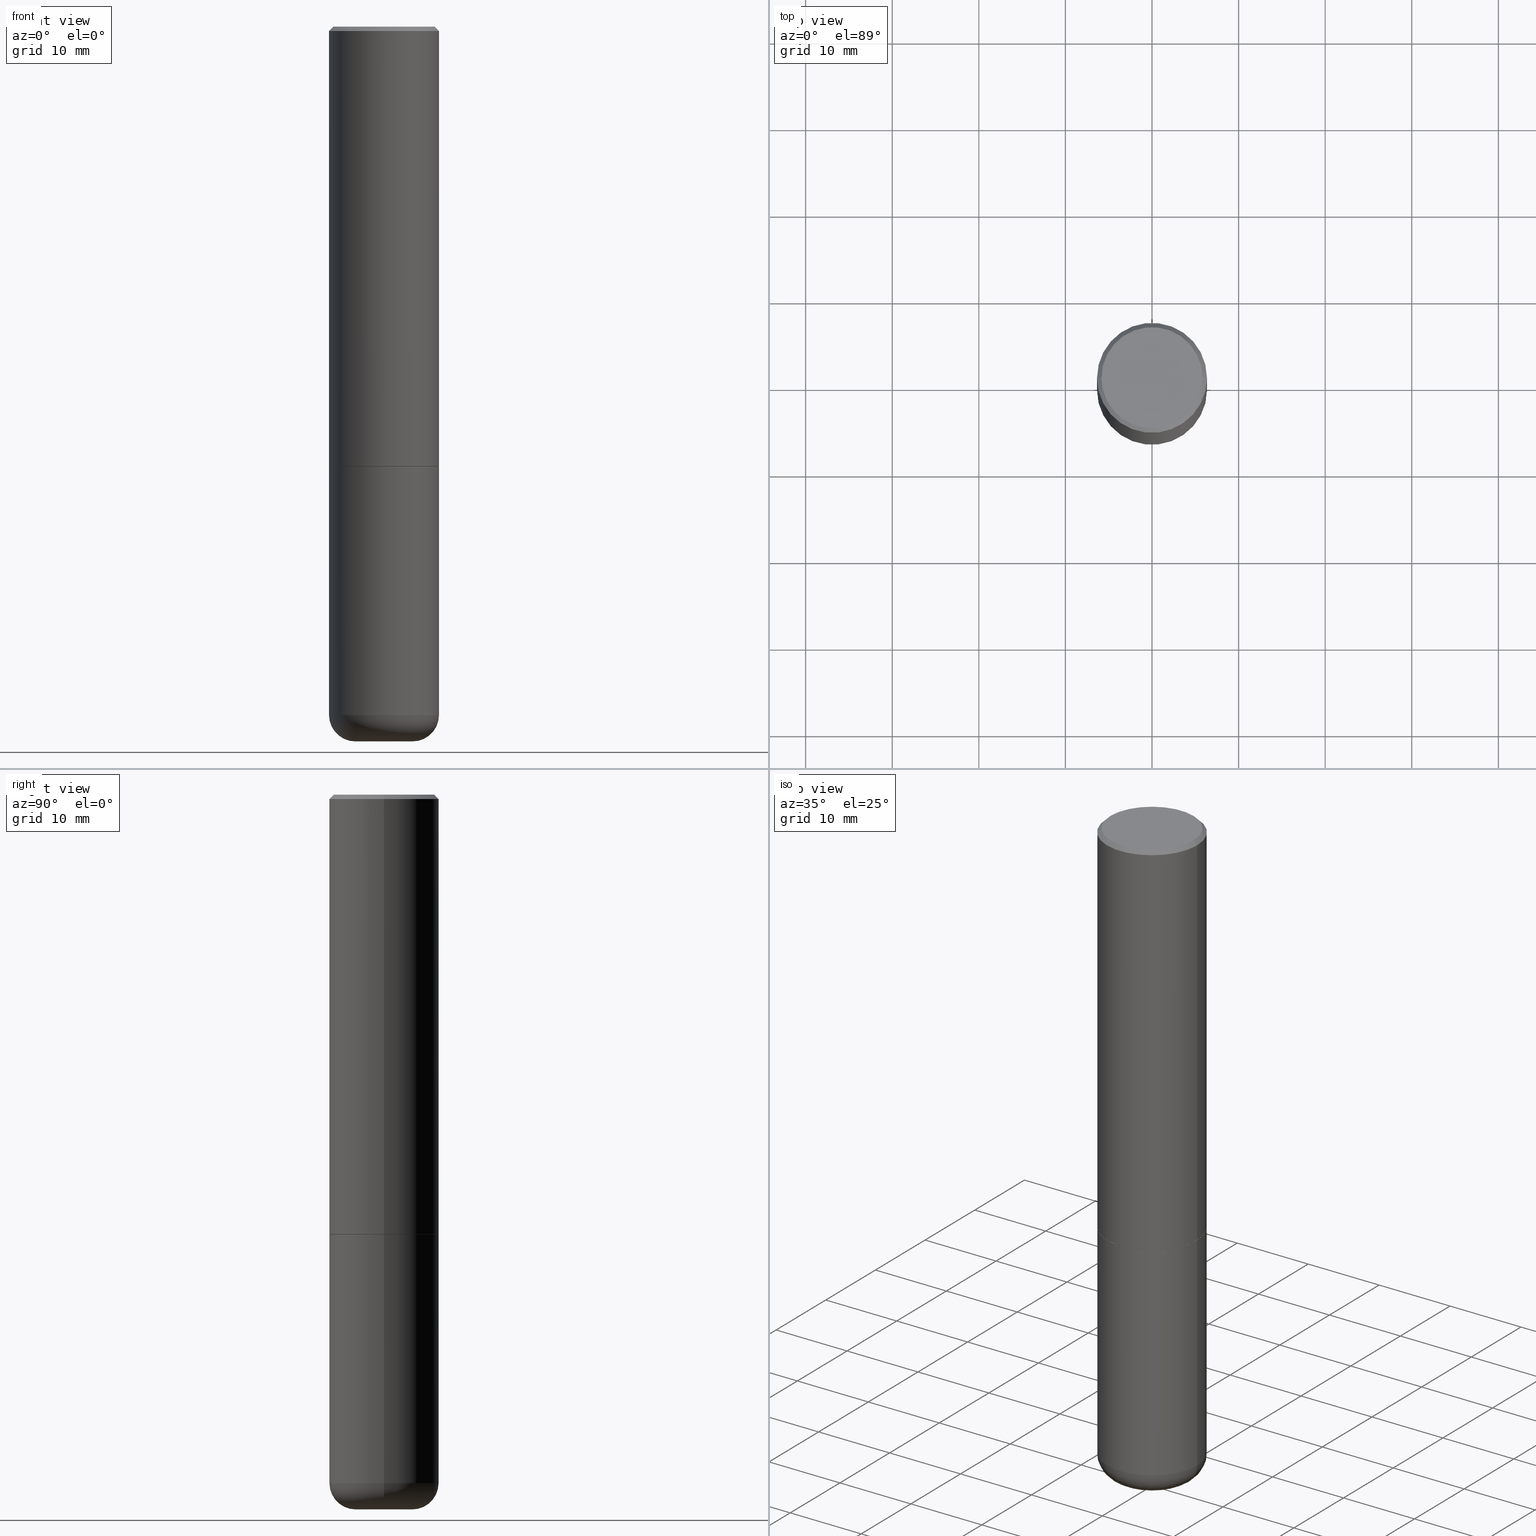
[diagram: canonical four-view strip — front | top / right | iso, engineering-drawing reading convention]
A machine part, canonical four-view strip (front | top / right | iso — engineering-drawing reading convention). The complete STEP part file that produces these views, byte-faithful:
ISO-10303-21;
HEADER;
FILE_DESCRIPTION (( 'STEP AP203' ),
    '1' );
FILE_NAME ('32830.STEP',
    '2022-11-02T20:10:47',
    ( '' ),
    ( '' ),
    'SwSTEP 2.0',
    'SolidWorks 2022',
    '' );
FILE_SCHEMA (( 'CONFIG_CONTROL_DESIGN' ));
ENDSEC;

DATA;
#1 = VERTEX_POINT ( 'NONE', #129 ) ;
#2 = ORIENTED_EDGE ( 'NONE', *, *, #184, .F. ) ;
#3 = DIRECTION ( 'NONE',  ( 2.438088387897960049E-29, -3.491481338843145188E-15, -1.000000000000000000 ) ) ;
#4 = DIRECTION ( 'NONE',  ( -2.445468806185136597E-29, 3.491481338843145583E-15, 1.000000000000000000 ) ) ;
#5 = CIRCLE ( 'NONE', #70, 0.2499999999999996669 ) ;
#6 = ORIENTED_EDGE ( 'NONE', *, *, #425, .T. ) ;
#7 = CARTESIAN_POINT ( 'NONE',  ( 4.890937612370273194E-29, -6.982962677686291165E-15, -2.000000000000000000 ) ) ;
#8 = CARTESIAN_POINT ( 'NONE',  ( 7.947773620101693940E-29, -1.134731435124022443E-14, -3.250000000000000000 ) ) ;
#9 = ORIENTED_EDGE ( 'NONE', *, *, #410, .F. ) ;
#10 = CYLINDRICAL_SURFACE ( 'NONE', #299, 0.2499999999999995559 ) ;
#11 = DIRECTION ( 'NONE',  ( 7.105427357601001859E-15, 1.000000000000000000, -3.491481338843145583E-15 ) ) ;
#12 = CARTESIAN_POINT ( 'NONE',  ( 4.888492143564087591E-29, -6.979471196347447369E-15, -1.998999999999999888 ) ) ;
#13 = FACE_OUTER_BOUND ( 'NONE', #337, .T. ) ;
#14 = DATE_AND_TIME ( #478, #261 ) ;
#15 = AXIS2_PLACEMENT_3D ( 'NONE', #41, #239, #234 ) ;
#16 = EDGE_LOOP ( 'NONE', ( #161, #382, #471, #489 ) ) ;
#17 = CONICAL_SURFACE ( 'NONE', #117, 0.1022878157401959642, 1.535889741755009696 ) ;
#18 = DIRECTION ( 'NONE',  ( 2.445468806185136597E-29, -3.491481338843145583E-15, -1.000000000000000000 ) ) ;
#19 = PERSON_AND_ORGANIZATION ( #105, #445 ) ;
#20 = EDGE_CURVE ( 'NONE', #157, #416, #49, .T. ) ;
#21 = EDGE_CURVE ( 'NONE', #199, #436, #414, .T. ) ;
#22 = CARTESIAN_POINT ( 'NONE',  ( 7.947204554791619182E-29, -1.134650187679537143E-14, -3.249767298070359800 ) ) ;
#23 = CALENDAR_DATE ( 2022, 2, 11 ) ;
#24 = CARTESIAN_POINT ( 'NONE',  ( 7.938469415450093491E-29, -1.133403041286747707E-14, -3.246195328835081995 ) ) ;
#25 = APPROVAL_ROLE ( '' ) ;
#26 = CARTESIAN_POINT ( 'NONE',  ( -0.2489999999999996660, -5.213711265643644864E-15, -2.000000000000000000 ) ) ;
#27 = APPROVAL_PERSON_ORGANIZATION ( #138, #389, #202 ) ;
#28 = ADVANCED_FACE ( 'NONE', ( #466 ), #257, .T. ) ;
#29 = DIRECTION ( 'NONE',  ( 2.445468806185136597E-29, -3.491481338843145583E-15, -1.000000000000000000 ) ) ;
#30 = EDGE_CURVE ( 'NONE', #160, #1, #87, .T. ) ;
#31 = DIRECTION ( 'NONE',  ( 2.445468806185136597E-29, -3.491481338843145583E-15, -1.000000000000000000 ) ) ;
#32 = VECTOR ( 'NONE', #179, 39.37007874015748854 ) ;
#33 = CIRCLE ( 'NONE', #219, 0.2499999999999996669 ) ;
#34 = ORIENTED_EDGE ( 'NONE', *, *, #165, .T. ) ;
#35 = DIRECTION ( 'NONE',  ( 1.000000000000000000, 0.000000000000000000, 0.000000000000000000 ) ) ;
#36 = AXIS2_PLACEMENT_3D ( 'NONE', #438, #343, #235 ) ;
#37 = AXIS2_PLACEMENT_3D ( 'NONE', #401, #292, #450 ) ;
#38 = DIRECTION ( 'NONE',  ( -2.445468806185136597E-29, 3.491481338843145583E-15, 1.000000000000000000 ) ) ;
#39 = ADVANCED_FACE ( 'NONE', ( #200 ), #135, .T. ) ;
#40 = ORIENTED_EDGE ( 'NONE', *, *, #154, .F. ) ;
#41 = CARTESIAN_POINT ( 'NONE',  ( 7.654328537274535481E-29, -1.092835254396835267E-14, -3.130004569232299527 ) ) ;
#42 = PLANE ( 'NONE',  #453 ) ;
#43 = CARTESIAN_POINT ( 'NONE',  ( -0.2499999999999996114, -1.748293572161906447E-15, -1.998999999999999888 ) ) ;
#44 = DIRECTION ( 'NONE',  ( -2.445468806185136597E-29, 3.491481338843145583E-15, 1.000000000000000000 ) ) ;
#45 = FACE_OUTER_BOUND ( 'NONE', #48, .T. ) ;
#46 = AXIS2_PLACEMENT_3D ( 'NONE', #56, #18, #232 ) ;
#47 = AXIS2_PLACEMENT_3D ( 'NONE', #174, #62, #286 ) ;
#48 = EDGE_LOOP ( 'NONE', ( #84, #242, #321, #166 ) ) ;
#49 = LINE ( 'NONE', #469, #346 ) ;
#50 = ADVANCED_FACE ( 'NONE', ( #52 ), #10, .T. ) ;
#51 = COORDINATED_UNIVERSAL_TIME_OFFSET ( 5, 0, .BEHIND. ) ;
#52 = FACE_OUTER_BOUND ( 'NONE', #305, .T. ) ;
#53 = DIRECTION ( 'NONE',  ( -2.445468806185136597E-29, 3.491481338843145583E-15, 1.000000000000000000 ) ) ;
#54 = EDGE_LOOP ( 'NONE', ( #6, #356, #153, #271 ) ) ;
#55 = DIRECTION ( 'NONE',  ( 1.000000000000000000, -6.982962677686266711E-15, 0.000000000000000000 ) ) ;
#56 = CARTESIAN_POINT ( 'NONE',  ( 4.890937612370302936E-31, -6.982962677686332285E-17, -0.02000000000000011838 ) ) ;
#57 = APPROVAL_DATE_TIME ( #86, #76 ) ;
#58 = EDGE_CURVE ( 'NONE', #456, #85, #145, .T. ) ;
#59 = AXIS2_PLACEMENT_3D ( 'NONE', #12, #189, #318 ) ;
#60 = ORIENTED_EDGE ( 'NONE', *, *, #487, .F. ) ;
#61 = VECTOR ( 'NONE', #449, 39.37007874015748854 ) ;
#62 = DIRECTION ( 'NONE',  ( -2.445468806185136597E-29, 3.491481338843145583E-15, 1.000000000000000000 ) ) ;
#63 = PERSON_AND_ORGANIZATION_ROLE ( 'creator' ) ;
#64 = CARTESIAN_POINT ( 'NONE',  ( 7.947773620101693940E-29, -1.134731435124022443E-14, -3.250000000000000000 ) ) ;
#65 = CARTESIAN_POINT ( 'NONE',  ( -0.1289528157401960140, -1.044684165174388083E-14, -3.250000000000000000 ) ) ;
#66 = COORDINATED_UNIVERSAL_TIME_OFFSET ( 5, 0, .BEHIND. ) ;
#67 = DIRECTION ( 'NONE',  ( 1.000000000000000000, -6.982962677686267499E-15, 0.000000000000000000 ) ) ;
#68 = CIRCLE ( 'NONE', #37, 0.2299999999999993161 ) ;
#69 = DIRECTION ( 'NONE',  ( 2.445468806185136597E-29, -3.491481338843145583E-15, -1.000000000000000000 ) ) ;
#70 = AXIS2_PLACEMENT_3D ( 'NONE', #97, #330, #109 ) ;
#71 = DIRECTION ( 'NONE',  ( -2.445468806185136597E-29, 3.491481338843145583E-15, 1.000000000000000000 ) ) ;
#72 = ADVANCED_FACE ( 'NONE', ( #376 ), #218, .T. ) ;
#73 = ORIENTED_EDGE ( 'NONE', *, *, #21, .F. ) ;
#74 = ORIENTED_EDGE ( 'NONE', *, *, #159, .T. ) ;
#75 = ADVANCED_FACE ( 'NONE', ( #473 ), #310, .T. ) ;
#76 = APPROVAL ( #470, 'UNSPECIFIED' ) ;
#77 = AXIS2_PLACEMENT_3D ( 'NONE', #323, #71, #67 ) ;
#78 = EDGE_LOOP ( 'NONE', ( #468, #380 ) ) ;
#79 = ORIENTED_EDGE ( 'NONE', *, *, #114, .F. ) ;
#80 = CARTESIAN_POINT ( 'NONE',  ( 4.890937612370273194E-29, -6.982962677686291165E-15, -2.000000000000000000 ) ) ;
#81 = VERTEX_POINT ( 'NONE', #492 ) ;
#82 = ORIENTED_EDGE ( 'NONE', *, *, #140, .F. ) ;
#83 = CYLINDRICAL_SURFACE ( 'NONE', #36, 0.2499999999999995559 ) ;
#84 = ORIENTED_EDGE ( 'NONE', *, *, #332, .T. ) ;
#85 = VERTEX_POINT ( 'NONE', #196 ) ;
#86 = DATE_AND_TIME ( #317, #185 ) ;
#87 = CIRCLE ( 'NONE', #208, 0.2499999999999996669 ) ;
#88 = VECTOR ( 'NONE', #284, 39.37007874015748143 ) ;
#89 = EDGE_LOOP ( 'NONE', ( #301, #121, #79 ) ) ;
#90 = DIRECTION ( 'NONE',  ( 1.000000000000000000, -6.982962677686264344E-15, 0.000000000000000000 ) ) ;
#91 = DIRECTION ( 'NONE',  ( -1.000000000000000000, 7.105427357601003436E-15, 0.000000000000000000 ) ) ;
#92 = ORIENTED_EDGE ( 'NONE', *, *, #283, .T. ) ;
#93 = DIRECTION ( 'NONE',  ( -2.445468806185136597E-29, 3.491481338843145583E-15, 1.000000000000000000 ) ) ;
#94 = EDGE_CURVE ( 'NONE', #199, #125, #100, .T. ) ;
#95 = CALENDAR_DATE ( 2022, 2, 11 ) ;
#96 = ORIENTED_EDGE ( 'NONE', *, *, #291, .T. ) ;
#97 = CARTESIAN_POINT ( 'NONE',  ( 4.890937612370273194E-29, -6.982962677686291165E-15, -2.000000000000000000 ) ) ;
#98 = APPROVAL_STATUS ( 'not_yet_approved' ) ;
#99 = ORIENTED_EDGE ( 'NONE', *, *, #355, .F. ) ;
#100 = CIRCLE ( 'NONE', #432, 0.1289528157401960140 ) ;
#101 = VECTOR ( 'NONE', #229, 39.37007874015748854 ) ;
#102 = DATE_TIME_ROLE ( 'classification_date' ) ;
#103 = FACE_OUTER_BOUND ( 'NONE', #148, .T. ) ;
#104 = CARTESIAN_POINT ( 'NONE',  ( 7.654328537274535481E-29, -1.092835254396835267E-14, -3.130004569232299527 ) ) ;
#105 = PERSON ( 'UNSPECIFIED', 'UNSPECIFIED', 'UNSPECIFIED', ('UNSPECIFIED'), ('UNSPECIFIED'), ('UNSPECIFIED') ) ;
#106 = AXIS2_PLACEMENT_3D ( 'NONE', #8, #228, #204 ) ;
#107 = CARTESIAN_POINT ( 'NONE',  ( 4.890937612370302936E-31, -6.982962677686332285E-17, -0.02000000000000011838 ) ) ;
#108 = CONICAL_SURFACE ( 'NONE', #47, 0.2489999999999996660, 0.7853981633974141952 ) ;
#109 = DIRECTION ( 'NONE',  ( 1.000000000000000000, -6.982962677686268288E-15, 0.000000000000000000 ) ) ;
#110 = CIRCLE ( 'NONE', #311, 0.2499999999999994171 ) ;
#111 = ADVANCED_FACE ( 'NONE', ( #314 ), #472, .T. ) ;
#112 = ORIENTED_EDGE ( 'NONE', *, *, #339, .T. ) ;
#113 = CC_DESIGN_APPROVAL ( #389, ( #187 ) ) ;
#114 = EDGE_CURVE ( 'NONE', #81, #259, #293, .T. ) ;
#115 = ORIENTED_EDGE ( 'NONE', *, *, #264, .F. ) ;
#116 = AXIS2_PLACEMENT_3D ( 'NONE', #173, #476, #250 ) ;
#117 = AXIS2_PLACEMENT_3D ( 'NONE', #368, #69, #134 ) ;
#118 = EDGE_LOOP ( 'NONE', ( #313, #96, #282, #73 ) ) ;
#119 = DIRECTION ( 'NONE',  ( 1.000000000000000000, -6.982962677686273810E-15, 0.000000000000000000 ) ) ;
#120 =( NAMED_UNIT ( * ) PLANE_ANGLE_UNIT ( ) SI_UNIT ( $, .RADIAN. ) );
#121 = ORIENTED_EDGE ( 'NONE', *, *, #355, .T. ) ;
#122 = DIRECTION ( 'NONE',  ( 1.000000000000000000, -6.982962677686268288E-15, 0.000000000000000000 ) ) ;
#123 = CARTESIAN_POINT ( 'NONE',  ( -0.2499999999999994449, -7.179300771427075001E-15, -3.130004569232299527 ) ) ;
#124 = ORIENTED_EDGE ( 'NONE', *, *, #455, .T. ) ;
#125 = VERTEX_POINT ( 'NONE', #329 ) ;
#126 = CARTESIAN_POINT ( 'NONE',  ( 0.2489999999999996660, -8.721720384430167884E-15, -2.000000000000000000 ) ) ;
#127 = PERSON_AND_ORGANIZATION_ROLE ( 'design_supplier' ) ;
#128 = AXIS2_PLACEMENT_3D ( 'NONE', #64, #53, #119 ) ;
#129 = CARTESIAN_POINT ( 'NONE',  ( 0.2499999999999996669, -8.728703347107855476E-15, -2.000000000000000000 ) ) ;
#130 = PLANE ( 'NONE',  #248 ) ;
#131 = EDGE_LOOP ( 'NONE', ( #82, #92, #296, #222 ) ) ;
#132 = DIRECTION ( 'NONE',  ( 1.000000000000000000, -6.982962677686266711E-15, 4.876176775795935232E-29 ) ) ;
#133 = COORDINATED_UNIVERSAL_TIME_OFFSET ( 5, 0, .BEHIND. ) ;
#134 = DIRECTION ( 'NONE',  ( -1.000000000000000000, 6.982962677686267499E-15, 0.000000000000000000 ) ) ;
#135 = TOROIDAL_SURFACE ( 'NONE', #213, 0.1300000000000002265, 0.1199999999999995098 ) ;
#136 = VECTOR ( 'NONE', #366, 39.37007874015748143 ) ;
#137 = DIRECTION ( 'NONE',  ( 0.9993908270190957621, -6.978169709227543066E-15, -0.03489949670250130226 ) ) ;
#138 = PERSON_AND_ORGANIZATION ( #105, #445 ) ;
#139 = CARTESIAN_POINT ( 'NONE',  ( 0.2299999999999993161, -1.681434332853594870E-15, 4.268512490111905999E-18 ) ) ;
#140 = EDGE_CURVE ( 'NONE', #415, #157, #68, .T. ) ;
#141 = CARTESIAN_POINT ( 'NONE',  ( 7.947204554791619182E-29, -1.134650187679537143E-14, -3.249767298070359800 ) ) ;
#142 = DIRECTION ( 'NONE',  ( 1.000000000000000000, -6.982962677686263555E-15, 0.000000000000000000 ) ) ;
#143 = AXIS2_PLACEMENT_3D ( 'NONE', #171, #255, #177 ) ;
#144 = LOCAL_TIME ( 16, 10, 47.00000000000000000, #51 ) ;
#145 = CIRCLE ( 'NONE', #59, 0.2499999999999996669 ) ;
#146 = AXIS2_PLACEMENT_3D ( 'NONE', #344, #4, #457 ) ;
#147 = MECHANICAL_CONTEXT ( 'NONE', #482, 'mechanical' ) ;
#148 = EDGE_LOOP ( 'NONE', ( #397, #278, #274, #262 ) ) ;
#149 = DIRECTION ( 'NONE',  ( -2.445468806185136597E-29, 3.491481338843145583E-15, 1.000000000000000000 ) ) ;
#150 = CARTESIAN_POINT ( 'NONE',  ( 0.2499999999999994449, -1.267409321338991461E-14, -3.130004569232299527 ) ) ;
#151 = ORIENTED_EDGE ( 'NONE', *, *, #114, .T. ) ;
#152 = DESIGN_CONTEXT ( 'detailed design', #180, 'design' ) ;
#153 = ORIENTED_EDGE ( 'NONE', *, *, #339, .F. ) ;
#154 = EDGE_CURVE ( 'NONE', #220, #416, #335, .T. ) ;
#155 = DIRECTION ( 'NONE',  ( -2.445468806185136877E-29, 3.491481338843145188E-15, 1.000000000000000000 ) ) ;
#156 = AXIS2_PLACEMENT_3D ( 'NONE', #405, #409, #132 ) ;
#157 = VERTEX_POINT ( 'NONE', #361 ) ;
#158 = DIRECTION ( 'NONE',  ( 0.9999619230641714207, -6.890705306874825328E-15, -0.008726535498369011531 ) ) ;
#159 = EDGE_CURVE ( 'NONE', #170, #436, #256, .T. ) ;
#160 = VERTEX_POINT ( 'NONE', #364 ) ;
#161 = ORIENTED_EDGE ( 'NONE', *, *, #283, .F. ) ;
#162 = FACE_OUTER_BOUND ( 'NONE', #340, .T. ) ;
#163 = APPLICATION_PROTOCOL_DEFINITION ( 'international standard', 'config_control_design', 1994, #180 ) ;
#164 = CC_DESIGN_PERSON_AND_ORGANIZATION_ASSIGNMENT ( #395, #63, ( #328 ) ) ;
#165 = EDGE_CURVE ( 'NONE', #125, #199, #479, .T. ) ;
#166 = ORIENTED_EDGE ( 'NONE', *, *, #334, .F. ) ;
#167 = CARTESIAN_POINT ( 'NONE',  ( -0.2489999999999996660, -5.208412811295422462E-15, -2.000000000000000000 ) ) ;
#168 = VECTOR ( 'NONE', #158, 39.37007874015748854 ) ;
#169 = CONICAL_SURFACE ( 'NONE', #375, 0.1022878157401959642, 1.535889741755009696 ) ;
#170 = VERTEX_POINT ( 'NONE', #123 ) ;
#171 = CARTESIAN_POINT ( 'NONE',  ( 4.890937612370302936E-31, -6.982962677686332285E-17, -0.02000000000000011838 ) ) ;
#172 = CARTESIAN_POINT ( 'NONE',  ( -0.2499999999999995559, 1.776356839400247309E-15, -1.229733772563724203E-29 ) ) ;
#173 = CARTESIAN_POINT ( 'NONE',  ( 7.654328537274535481E-29, -1.092835254396835267E-14, -3.130004569232299527 ) ) ;
#174 = CARTESIAN_POINT ( 'NONE',  ( 4.890937612370273194E-29, -6.982962677686291165E-15, -2.000000000000000000 ) ) ;
#175 = APPROVAL_ROLE ( '' ) ;
#176 = LINE ( 'NONE', #326, #198 ) ;
#177 = DIRECTION ( 'NONE',  ( -1.000000000000000000, 6.982962677686266711E-15, 0.000000000000000000 ) ) ;
#178 = DIRECTION ( 'NONE',  ( 1.000000000000000000, -6.982962677686264344E-15, 0.000000000000000000 ) ) ;
#179 = DIRECTION ( 'NONE',  ( -0.7071067811865232589, 7.493145998870265808E-15, 0.7071067811865715536 ) ) ;
#180 = APPLICATION_CONTEXT ( 'configuration controlled 3d designs of mechanical parts and assemblies' ) ;
#181 = ADVANCED_FACE ( 'NONE', ( #243 ), #260, .F. ) ;
#182 = CC_DESIGN_DATE_AND_TIME_ASSIGNMENT ( #14, #244, ( #191 ) ) ;
#183 = AXIS2_PLACEMENT_3D ( 'NONE', #351, #11, #91 ) ;
#184 = EDGE_CURVE ( 'NONE', #456, #416, #273, .T. ) ;
#185 = LOCAL_TIME ( 16, 10, 47.00000000000000000, #133 ) ;
#186 =( LENGTH_UNIT ( ) NAMED_UNIT ( * ) SI_UNIT ( $, .METRE. ) );
#187 = SECURITY_CLASSIFICATION ( '', '', #252 ) ;
#188 = DIRECTION ( 'NONE',  ( 1.000000000000000000, -6.982962677686267499E-15, 4.876225828469323455E-29 ) ) ;
#189 = DIRECTION ( 'NONE',  ( -2.445468806185136597E-29, 3.491481338843145583E-15, 1.000000000000000000 ) ) ;
#190 = ADVANCED_FACE ( 'NONE', ( #45 ), #83, .T. ) ;
#191 = PRODUCT_DEFINITION ( 'UNKNOWN', '', #328, #152 ) ;
#192 = DIRECTION ( 'NONE',  ( 1.000000000000000000, -6.982962677686264344E-15, 0.000000000000000000 ) ) ;
#193 = LINE ( 'NONE', #269, #370 ) ;
#194 = DIRECTION ( 'NONE',  ( 1.000000000000000000, -6.982962677686265922E-15, 4.876176775795935793E-29 ) ) ;
#195 = VERTEX_POINT ( 'NONE', #167 ) ;
#196 = CARTESIAN_POINT ( 'NONE',  ( 0.2499999999999996669, -8.725211865769010891E-15, -1.998999999999999888 ) ) ;
#197 = CARTESIAN_POINT ( 'NONE',  ( 0.1289528157401960140, -1.223199488543284019E-14, -3.250000000000000000 ) ) ;
#198 = VECTOR ( 'NONE', #137, 39.37007874015748143 ) ;
#199 = VERTEX_POINT ( 'NONE', #354 ) ;
#200 = FACE_OUTER_BOUND ( 'NONE', #277, .T. ) ;
#201 = DIRECTION ( 'NONE',  ( 0.7071067811865469066, -7.319954787623252890E-15, -0.7071067811865479058 ) ) ;
#202 = APPROVAL_ROLE ( '' ) ;
#203 = EDGE_LOOP ( 'NONE', ( #265, #60 ) ) ;
#204 = DIRECTION ( 'NONE',  ( -1.000000000000000000, 6.982962677686273810E-15, 0.000000000000000000 ) ) ;
#205 = ORIENTED_EDGE ( 'NONE', *, *, #30, .F. ) ;
#206 = LINE ( 'NONE', #172, #266 ) ;
#207 = PERSON_AND_ORGANIZATION ( #105, #445 ) ;
#208 = AXIS2_PLACEMENT_3D ( 'NONE', #7, #462, #122 ) ;
#209 = ORIENTED_EDGE ( 'NONE', *, *, #226, .F. ) ;
#210 = CARTESIAN_POINT ( 'NONE',  ( 4.888492143564087591E-29, -6.979471196347447369E-15, -1.998999999999999888 ) ) ;
#211 = DATE_AND_TIME ( #95, #460 ) ;
#212 = DIRECTION ( 'NONE',  ( -2.445468806185136597E-29, 3.491481338843145583E-15, 1.000000000000000000 ) ) ;
#213 = AXIS2_PLACEMENT_3D ( 'NONE', #381, #307, #388 ) ;
#214 = LOCAL_TIME ( 16, 10, 47.00000000000000000, #403 ) ;
#215 = DIRECTION ( 'NONE',  ( -1.000000000000000000, 6.982962677686267499E-15, 0.000000000000000000 ) ) ;
#216 = APPROVAL ( #237, 'UNSPECIFIED' ) ;
#217 = ADVANCED_FACE ( 'NONE', ( #13 ), #130, .F. ) ;
#218 = CONICAL_SURFACE ( 'NONE', #280, 0.2489999999999996660, 0.7853981633974141952 ) ;
#219 = AXIS2_PLACEMENT_3D ( 'NONE', #210, #441, #178 ) ;
#220 = VERTEX_POINT ( 'NONE', #423 ) ;
#221 = CARTESIAN_POINT ( 'NONE',  ( 0.000000000000000000, 0.000000000000000000, 0.000000000000000000 ) ) ;
#222 = ORIENTED_EDGE ( 'NONE', *, *, #20, .F. ) ;
#223 = CIRCLE ( 'NONE', #183, 0.1199999999999995098 ) ;
#224 = CIRCLE ( 'NONE', #294, 0.2299999999999993161 ) ;
#225 = ADVANCED_FACE ( 'NONE', ( #394 ), #399, .T. ) ;
#226 = EDGE_CURVE ( 'NONE', #170, #160, #206, .T. ) ;
#227 = DIRECTION ( 'NONE',  ( 1.000000000000000000, -6.982962677686266711E-15, 4.876176775795935232E-29 ) ) ;
#228 = DIRECTION ( 'NONE',  ( 2.445468806185136597E-29, -3.491481338843145583E-15, -1.000000000000000000 ) ) ;
#229 = DIRECTION ( 'NONE',  ( 0.7071067811865232589, -2.468850131082003836E-15, 0.7071067811865715536 ) ) ;
#230 = ORIENTED_EDGE ( 'NONE', *, *, #447, .T. ) ;
#231 = EDGE_LOOP ( 'NONE', ( #99, #421, #9 ) ) ;
#232 = DIRECTION ( 'NONE',  ( -1.000000000000000000, 6.982962677686266711E-15, 0.000000000000000000 ) ) ;
#233 = DIRECTION ( 'NONE',  ( -2.445468806185136877E-29, 3.491481338843145188E-15, 1.000000000000000000 ) ) ;
#234 = DIRECTION ( 'NONE',  ( 1.000000000000000000, -6.982962677686270655E-15, 4.883557194083114583E-29 ) ) ;
#235 = DIRECTION ( 'NONE',  ( 1.000000000000000000, -6.982962677686266711E-15, 4.876176775795935232E-29 ) ) ;
#236 = AXIS2_PLACEMENT_3D ( 'NONE', #342, #433, #90 ) ;
#237 = APPROVAL_STATUS ( 'not_yet_approved' ) ;
#238 = APPROVAL_PERSON_ORGANIZATION ( #442, #76, #25 ) ;
#239 = DIRECTION ( 'NONE',  ( -2.445468806185136597E-29, 3.491481338843145583E-15, 1.000000000000000000 ) ) ;
#240 = LINE ( 'NONE', #197, #168 ) ;
#241 = PRODUCT_DEFINITION_SHAPE ( 'NONE', 'NONE',  #191 ) ;
#242 = ORIENTED_EDGE ( 'NONE', *, *, #226, .T. ) ;
#243 = FACE_OUTER_BOUND ( 'NONE', #465, .T. ) ;
#244 = DATE_TIME_ROLE ( 'creation_date' ) ;
#245 = VERTEX_POINT ( 'NONE', #126 ) ;
#246 = ORIENTED_EDGE ( 'NONE', *, *, #21, .T. ) ;
#247 = FACE_OUTER_BOUND ( 'NONE', #54, .T. ) ;
#248 = AXIS2_PLACEMENT_3D ( 'NONE', #428, #358, #386 ) ;
#249 = ORIENTED_EDGE ( 'NONE', *, *, #159, .F. ) ;
#250 = DIRECTION ( 'NONE',  ( 1.000000000000000000, -6.982962677686263555E-15, 0.000000000000000000 ) ) ;
#251 = FACE_OUTER_BOUND ( 'NONE', #89, .T. ) ;
#252 = SECURITY_CLASSIFICATION_LEVEL ( 'unclassified' ) ;
#253 = CARTESIAN_POINT ( 'NONE',  ( 0.2499999999999995559, -1.745740669421563522E-15, 1.219044193948981706E-29 ) ) ;
#254 = CC_DESIGN_PERSON_AND_ORGANIZATION_ASSIGNMENT ( #19, #287, ( #191 ) ) ;
#255 = DIRECTION ( 'NONE',  ( 2.445468806185136597E-29, -3.491481338843145583E-15, -1.000000000000000000 ) ) ;
#256 = CIRCLE ( 'NONE', #116, 0.2499999999999994449 ) ;
#257 = TOROIDAL_SURFACE ( 'NONE', #15, 0.1300000000000002265, 0.1199999999999995098 ) ;
#258 = LINE ( 'NONE', #475, #136 ) ;
#259 = VERTEX_POINT ( 'NONE', #279 ) ;
#260 = CONICAL_SURFACE ( 'NONE', #106, 0.1289528157401960140, 1.562069680534929894 ) ;
#261 = LOCAL_TIME ( 16, 10, 47.00000000000000000, #439 ) ;
#262 = ORIENTED_EDGE ( 'NONE', *, *, #360, .F. ) ;
#263 = LINE ( 'NONE', #418, #101 ) ;
#264 = EDGE_CURVE ( 'NONE', #81, #199, #240, .T. ) ;
#265 = ORIENTED_EDGE ( 'NONE', *, *, #425, .F. ) ;
#266 = VECTOR ( 'NONE', #459, 39.37007874015748143 ) ;
#267 = CARTESIAN_POINT ( 'NONE',  ( 0.000000000000000000, 0.000000000000000000, 0.000000000000000000 ) ) ;
#268 = AXIS2_PLACEMENT_3D ( 'NONE', #80, #304, #194 ) ;
#269 = CARTESIAN_POINT ( 'NONE',  ( 0.2499999999999994171, -1.784954126219742244E-15, -0.02000000000000011838 ) ) ;
#270 = CARTESIAN_POINT ( 'NONE',  ( 0.2499999999999995282, -1.745740669421563325E-15, 1.219044193948981566E-29 ) ) ;
#271 = ORIENTED_EDGE ( 'NONE', *, *, #455, .F. ) ;
#272 = CARTESIAN_POINT ( 'NONE',  ( 4.890937612370273194E-29, -6.982962677686291165E-15, -2.000000000000000000 ) ) ;
#273 = LINE ( 'NONE', #319, #419 ) ;
#274 = ORIENTED_EDGE ( 'NONE', *, *, #165, .F. ) ;
#275 = DIRECTION ( 'NONE',  ( -0.7071067811865469066, 2.468850131082251144E-15, -0.7071067811865479058 ) ) ;
#276 = LENGTH_MEASURE_WITH_UNIT ( LENGTH_MEASURE( 0.02539999999999999897 ), #186 );
#277 = EDGE_LOOP ( 'NONE', ( #353, #34, #246, #249 ) ) ;
#278 = ORIENTED_EDGE ( 'NONE', *, *, #264, .T. ) ;
#279 = CARTESIAN_POINT ( 'NONE',  ( -0.1022878157401959642, -1.063222987709953400E-14, -3.249767298070359800 ) ) ;
#280 = AXIS2_PLACEMENT_3D ( 'NONE', #272, #93, #192 ) ;
#281 = CALENDAR_DATE ( 2022, 2, 11 ) ;
#282 = ORIENTED_EDGE ( 'NONE', *, *, #332, .F. ) ;
#283 = EDGE_CURVE ( 'NONE', #415, #220, #193, .T. ) ;
#284 = DIRECTION ( 'NONE',  ( -2.445468806185136877E-29, 3.491481338843145188E-15, 1.000000000000000000 ) ) ;
#285 = ADVANCED_FACE ( 'NONE', ( #315 ), #42, .F. ) ;
#286 = DIRECTION ( 'NONE',  ( 1.000000000000000000, -6.982962677686264344E-15, 0.000000000000000000 ) ) ;
#287 = PERSON_AND_ORGANIZATION_ROLE ( 'creator' ) ;
#288 = CIRCLE ( 'NONE', #327, 0.2499999999999994449 ) ;
#289 = AXIS2_PLACEMENT_3D ( 'NONE', #221, #372, #35 ) ;
#290 = CARTESIAN_POINT ( 'NONE',  ( -0.2499999999999994171, 1.675911042644699238E-15, -0.02000000000000011838 ) ) ;
#291 = EDGE_CURVE ( 'NONE', #125, #170, #223, .T. ) ;
#292 = DIRECTION ( 'NONE',  ( -2.445468806185136597E-29, 3.491481338843145583E-15, 1.000000000000000000 ) ) ;
#293 = CIRCLE ( 'NONE', #488, 0.1022878157401959642 ) ;
#294 = AXIS2_PLACEMENT_3D ( 'NONE', #312, #350, #188 ) ;
#295 = MANIFOLD_SOLID_BREP ( 'Body-Move/Copy2[1]', #443 ) ;
#296 = ORIENTED_EDGE ( 'NONE', *, *, #154, .T. ) ;
#297 = MANIFOLD_SOLID_BREP ( 'Body-Move/Copy2[2]', #383 ) ;
#298 = ADVANCED_FACE ( 'NONE', ( #162 ), #322, .T. ) ;
#299 = AXIS2_PLACEMENT_3D ( 'NONE', #267, #38, #227 ) ;
#300 = CIRCLE ( 'NONE', #146, 0.2489999999999996660 ) ;
#301 = ORIENTED_EDGE ( 'NONE', *, *, #430, .F. ) ;
#302 = PERSON_AND_ORGANIZATION_ROLE ( 'design_owner' ) ;
#303 = PRODUCT_RELATED_PRODUCT_CATEGORY ( 'detail', '', ( #390 ) ) ;
#304 = DIRECTION ( 'NONE',  ( -2.438088387897960049E-29, 3.491481338843145188E-15, 1.000000000000000000 ) ) ;
#305 = EDGE_LOOP ( 'NONE', ( #209, #74, #422, #205 ) ) ;
#306 = EDGE_CURVE ( 'NONE', #195, #456, #369, .T. ) ;
#307 = DIRECTION ( 'NONE',  ( -2.445468806185136597E-29, 3.491481338843145583E-15, 1.000000000000000000 ) ) ;
#308 = LINE ( 'NONE', #270, #420 ) ;
#309 = EDGE_LOOP ( 'NONE', ( #373, #384, #124, #412 ) ) ;
#310 = CYLINDRICAL_SURFACE ( 'NONE', #357, 0.2499999999999995282 ) ;
#311 = AXIS2_PLACEMENT_3D ( 'NONE', #452, #484, #444 ) ;
#312 = CARTESIAN_POINT ( 'NONE',  ( -1.043851414335219820E-46, 1.490343170380447200E-32, 4.268512490100411279E-18 ) ) ;
#313 = ORIENTED_EDGE ( 'NONE', *, *, #94, .T. ) ;
#314 = FACE_OUTER_BOUND ( 'NONE', #16, .T. ) ;
#315 = FACE_OUTER_BOUND ( 'NONE', #78, .T. ) ;
#316 = ORIENTED_EDGE ( 'NONE', *, *, #447, .F. ) ;
#317 = CALENDAR_DATE ( 2022, 2, 11 ) ;
#318 = DIRECTION ( 'NONE',  ( 1.000000000000000000, -6.982962677686264344E-15, 0.000000000000000000 ) ) ;
#319 = CARTESIAN_POINT ( 'NONE',  ( -0.2499999999999995282, 1.776356839400247112E-15, -1.229733772563724063E-29 ) ) ;
#320 = CIRCLE ( 'NONE', #77, 0.1022878157401959642 ) ;
#321 = ORIENTED_EDGE ( 'NONE', *, *, #396, .F. ) ;
#322 = CYLINDRICAL_SURFACE ( 'NONE', #156, 0.2499999999999995282 ) ;
#323 = CARTESIAN_POINT ( 'NONE',  ( 7.947204554791619182E-29, -1.134650187679537143E-14, -3.249767298070359800 ) ) ;
#324 = DATE_AND_TIME ( #281, #214 ) ;
#325 = ORIENTED_EDGE ( 'NONE', *, *, #396, .T. ) ;
#326 = CARTESIAN_POINT ( 'NONE',  ( 0.1022878157401959642, -1.204824723187740829E-14, -3.249767298070359800 ) ) ;
#327 = AXIS2_PLACEMENT_3D ( 'NONE', #104, #477, #142 ) ;
#328 = PRODUCT_DEFINITION_FORMATION_WITH_SPECIFIED_SOURCE ( 'ANY', '', #390, .NOT_KNOWN. ) ;
#329 = CARTESIAN_POINT ( 'NONE',  ( -0.1289528157401960140, -9.791522595504129181E-15, -3.250000000000000000 ) ) ;
#330 = DIRECTION ( 'NONE',  ( -2.445468806185136597E-29, 3.491481338843145583E-15, 1.000000000000000000 ) ) ;
#331 = AXIS2_PLACEMENT_3D ( 'NONE', #107, #393, #55 ) ;
#332 = EDGE_CURVE ( 'NONE', #436, #170, #288, .T. ) ;
#333 = EDGE_CURVE ( 'NONE', #416, #220, #110, .T. ) ;
#334 = EDGE_CURVE ( 'NONE', #436, #1, #448, .T. ) ;
#335 = CIRCLE ( 'NONE', #331, 0.2499999999999994171 ) ;
#336 = CIRCLE ( 'NONE', #454, 0.2489999999999996660 ) ;
#337 = EDGE_LOOP ( 'NONE', ( #325, #431 ) ) ;
#338 = APPLICATION_PROTOCOL_DEFINITION ( 'international standard', 'config_control_design', 1994, #482 ) ;
#339 = EDGE_CURVE ( 'NONE', #85, #456, #33, .T. ) ;
#340 = EDGE_LOOP ( 'NONE', ( #112, #398, #40, #316 ) ) ;
#341 = FACE_OUTER_BOUND ( 'NONE', #203, .T. ) ;
#342 = CARTESIAN_POINT ( 'NONE',  ( 0.1300000000000002265, -1.183613769206756923E-14, -3.130004569232299527 ) ) ;
#343 = DIRECTION ( 'NONE',  ( -2.445468806185136597E-29, 3.491481338843145583E-15, 1.000000000000000000 ) ) ;
#344 = CARTESIAN_POINT ( 'NONE',  ( 4.890937612370273194E-29, -6.982962677686291165E-15, -2.000000000000000000 ) ) ;
#345 = ORIENTED_EDGE ( 'NONE', *, *, #58, .T. ) ;
#346 = VECTOR ( 'NONE', #275, 39.37007874015748854 ) ;
#347 = CARTESIAN_POINT ( 'NONE',  ( 7.947773620101693940E-29, -1.134731435124022443E-14, -3.250000000000000000 ) ) ;
#348 = CONICAL_SURFACE ( 'NONE', #367, 0.1289528157401960140, 1.562069680534929894 ) ;
#349 = ADVANCED_FACE ( 'NONE', ( #407 ), #17, .F. ) ;
#350 = DIRECTION ( 'NONE',  ( -2.445468806185136597E-29, 3.491481338843145583E-15, 1.000000000000000000 ) ) ;
#351 = CARTESIAN_POINT ( 'NONE',  ( -0.1300000000000002265, -1.000464698748022161E-14, -3.130004569232299527 ) ) ;
#352 = PERSON_AND_ORGANIZATION ( #105, #445 ) ;
#353 = ORIENTED_EDGE ( 'NONE', *, *, #291, .F. ) ;
#354 = CARTESIAN_POINT ( 'NONE',  ( 0.1289528157401960140, -1.224778705073656802E-14, -3.250000000000000000 ) ) ;
#355 = EDGE_CURVE ( 'NONE', #426, #259, #258, .T. ) ;
#356 = ORIENTED_EDGE ( 'NONE', *, *, #306, .T. ) ;
#357 = AXIS2_PLACEMENT_3D ( 'NONE', #427, #44, #437 ) ;
#358 = DIRECTION ( 'NONE',  ( 2.438088387897960049E-29, -3.491481338843145188E-15, -1.000000000000000000 ) ) ;
#359 = CC_DESIGN_APPROVAL ( #76, ( #191 ) ) ;
#360 = EDGE_CURVE ( 'NONE', #259, #125, #480, .T. ) ;
#361 = CARTESIAN_POINT ( 'NONE',  ( -0.2299999999999993161, 1.640996229256267786E-15, 4.268512490089056766E-18 ) ) ;
#362 = DIRECTION ( 'NONE',  ( -1.000000000000000000, 6.982962677686273810E-15, 0.000000000000000000 ) ) ;
#363 = PERSON_AND_ORGANIZATION_ROLE ( 'classification_officer' ) ;
#364 = CARTESIAN_POINT ( 'NONE',  ( -0.2499999999999996669, -7.179300771427075001E-15, -2.000000000000000000 ) ) ;
#365 = DIRECTION ( 'NONE',  ( 1.000000000000000000, -6.982962677686264344E-15, 0.000000000000000000 ) ) ;
#366 = DIRECTION ( 'NONE',  ( -0.9993908270190957621, 6.856857904024554893E-15, -0.03489949670250130226 ) ) ;
#367 = AXIS2_PLACEMENT_3D ( 'NONE', #400, #31, #362 ) ;
#368 = CARTESIAN_POINT ( 'NONE',  ( 7.947204554791619182E-29, -1.134650187679537143E-14, -3.249767298070359800 ) ) ;
#369 = LINE ( 'NONE', #26, #32 ) ;
#370 = VECTOR ( 'NONE', #201, 39.37007874015748854 ) ;
#371 = ADVANCED_FACE ( 'NONE', ( #103 ), #348, .F. ) ;
#372 = DIRECTION ( 'NONE',  ( 0.000000000000000000, 0.000000000000000000, 1.000000000000000000 ) ) ;
#373 = ORIENTED_EDGE ( 'NONE', *, *, #306, .F. ) ;
#374 = DIMENSIONAL_EXPONENTS ( 1.000000000000000000, 0.000000000000000000, 0.000000000000000000, 0.000000000000000000, 0.000000000000000000, 0.000000000000000000, 0.000000000000000000 ) ;
#375 = AXIS2_PLACEMENT_3D ( 'NONE', #22, #29, #215 ) ;
#376 = FACE_OUTER_BOUND ( 'NONE', #309, .T. ) ;
#377 = CARTESIAN_POINT ( 'NONE',  ( 1.606081415867836334E-15, 0.2299999999999993161, -8.009064516888709120E-16 ) ) ;
#378 = PLANE ( 'NONE',  #268 ) ;
#379 = ADVANCED_FACE ( 'NONE', ( #251 ), #169, .F. ) ;
#380 = ORIENTED_EDGE ( 'NONE', *, *, #140, .T. ) ;
#381 = CARTESIAN_POINT ( 'NONE',  ( 7.654328537274535481E-29, -1.092835254396835267E-14, -3.130004569232299527 ) ) ;
#382 = ORIENTED_EDGE ( 'NONE', *, *, #467, .F. ) ;
#383 = CLOSED_SHELL ( 'NONE', ( #424, #298, #225, #111, #75, #72, #451, #285 ) ) ;
#384 = ORIENTED_EDGE ( 'NONE', *, *, #487, .T. ) ;
#385 = CC_DESIGN_SECURITY_CLASSIFICATION ( #187, ( #328 ) ) ;
#386 = DIRECTION ( 'NONE',  ( -1.000000000000000000, 6.982962677686265922E-15, -4.876176775795935793E-29 ) ) ;
#387 = PERSON_AND_ORGANIZATION ( #105, #445 ) ;
#388 = DIRECTION ( 'NONE',  ( 1.000000000000000000, -6.982962677686270655E-15, 4.883557194083114583E-29 ) ) ;
#389 = APPROVAL ( #98, 'UNSPECIFIED' ) ;
#390 = PRODUCT ( '32830', '32830', '', ( #147 ) ) ;
#391 = CC_DESIGN_PERSON_AND_ORGANIZATION_ASSIGNMENT ( #387, #127, ( #328 ) ) ;
#392 = APPROVAL_DATE_TIME ( #324, #389 ) ;
#393 = DIRECTION ( 'NONE',  ( -2.445468806185136597E-29, 3.491481338843145583E-15, 1.000000000000000000 ) ) ;
#394 = FACE_OUTER_BOUND ( 'NONE', #131, .T. ) ;
#395 = PERSON_AND_ORGANIZATION ( #105, #445 ) ;
#396 = EDGE_CURVE ( 'NONE', #1, #160, #5, .T. ) ;
#397 = ORIENTED_EDGE ( 'NONE', *, *, #410, .T. ) ;
#398 = ORIENTED_EDGE ( 'NONE', *, *, #184, .T. ) ;
#399 = CONICAL_SURFACE ( 'NONE', #46, 0.2499999999999994171, 0.7853981633974476129 ) ;
#400 = CARTESIAN_POINT ( 'NONE',  ( 7.947773620101693940E-29, -1.134731435124022443E-14, -3.250000000000000000 ) ) ;
#401 = CARTESIAN_POINT ( 'NONE',  ( -1.043851414335219820E-46, 1.490343170380447200E-32, 4.268512490100411279E-18 ) ) ;
#402 = CARTESIAN_POINT ( 'NONE',  ( 4.890937612370273194E-29, -6.982962677686291165E-15, -2.000000000000000000 ) ) ;
#403 = COORDINATED_UNIVERSAL_TIME_OFFSET ( 5, 0, .BEHIND. ) ;
#404 = DIRECTION ( 'NONE',  ( -2.445468806185136597E-29, 3.491481338843145583E-15, 1.000000000000000000 ) ) ;
#405 = CARTESIAN_POINT ( 'NONE',  ( 0.000000000000000000, 0.000000000000000000, 0.000000000000000000 ) ) ;
#406 = DIRECTION ( 'NONE',  ( 1.000000000000000000, -6.982962677686267499E-15, 0.000000000000000000 ) ) ;
#407 = FACE_OUTER_BOUND ( 'NONE', #231, .T. ) ;
#408 = APPROVAL_PERSON_ORGANIZATION ( #352, #216, #175 ) ;
#409 = DIRECTION ( 'NONE',  ( -2.445468806185136597E-29, 3.491481338843145583E-15, 1.000000000000000000 ) ) ;
#410 = EDGE_CURVE ( 'NONE', #259, #81, #320, .T. ) ;
#411 = CC_DESIGN_DATE_AND_TIME_ASSIGNMENT ( #483, #102, ( #187 ) ) ;
#412 = ORIENTED_EDGE ( 'NONE', *, *, #58, .F. ) ;
#413 = UNCERTAINTY_MEASURE_WITH_UNIT (LENGTH_MEASURE( 1.000000000000000082E-05 ), #464, 'distance_accuracy_value', 'NONE');
#414 = CIRCLE ( 'NONE', #236, 0.1199999999999995098 ) ;
#415 = VERTEX_POINT ( 'NONE', #139 ) ;
#416 = VERTEX_POINT ( 'NONE', #290 ) ;
#417 = ADVANCED_BREP_SHAPE_REPRESENTATION ( '32830', ( #295, #297, #289 ), #481 ) ;
#418 = CARTESIAN_POINT ( 'NONE',  ( 0.2489999999999996660, -8.721720384430167884E-15, -2.000000000000000000 ) ) ;
#419 = VECTOR ( 'NONE', #155, 39.37007874015748143 ) ;
#420 = VECTOR ( 'NONE', #233, 39.37007874015748143 ) ;
#421 = ORIENTED_EDGE ( 'NONE', *, *, #430, .T. ) ;
#422 = ORIENTED_EDGE ( 'NONE', *, *, #334, .T. ) ;
#423 = CARTESIAN_POINT ( 'NONE',  ( 0.2499999999999994171, -1.784954126219742244E-15, -0.02000000000000011838 ) ) ;
#424 = ADVANCED_FACE ( 'NONE', ( #247 ), #108, .T. ) ;
#425 = EDGE_CURVE ( 'NONE', #245, #195, #336, .T. ) ;
#426 = VERTEX_POINT ( 'NONE', #24 ) ;
#427 = CARTESIAN_POINT ( 'NONE',  ( 0.000000000000000000, 0.000000000000000000, 0.000000000000000000 ) ) ;
#428 = CARTESIAN_POINT ( 'NONE',  ( 1.745740669421613023E-15, 0.2499999999999927003, -2.000000000000000888 ) ) ;
#429 = PERSON_AND_ORGANIZATION ( #105, #445 ) ;
#430 = EDGE_CURVE ( 'NONE', #426, #81, #176, .T. ) ;
#431 = ORIENTED_EDGE ( 'NONE', *, *, #30, .T. ) ;
#432 = AXIS2_PLACEMENT_3D ( 'NONE', #347, #149, #458 ) ;
#433 = DIRECTION ( 'NONE',  ( -6.982962677686266711E-15, -1.000000000000000000, 3.491481338843145583E-15 ) ) ;
#434 = CC_DESIGN_APPROVAL ( #216, ( #328 ) ) ;
#435 = SHAPE_DEFINITION_REPRESENTATION ( #241, #417 ) ;
#436 = VERTEX_POINT ( 'NONE', #150 ) ;
#437 = DIRECTION ( 'NONE',  ( 1.000000000000000000, -6.982962677686266711E-15, 4.876176775795935232E-29 ) ) ;
#438 = CARTESIAN_POINT ( 'NONE',  ( 0.000000000000000000, 0.000000000000000000, 0.000000000000000000 ) ) ;
#439 = COORDINATED_UNIVERSAL_TIME_OFFSET ( 5, 0, .BEHIND. ) ;
#440 = EDGE_LOOP ( 'NONE', ( #2, #345, #230, #461 ) ) ;
#441 = DIRECTION ( 'NONE',  ( -2.445468806185136597E-29, 3.491481338843145583E-15, 1.000000000000000000 ) ) ;
#442 = PERSON_AND_ORGANIZATION ( #105, #445 ) ;
#443 = CLOSED_SHELL ( 'NONE', ( #371, #28, #190, #349, #379, #217, #50, #39, #181 ) ) ;
#444 = DIRECTION ( 'NONE',  ( 1.000000000000000000, -6.982962677686266711E-15, 0.000000000000000000 ) ) ;
#445 = ORGANIZATION ( 'UNSPECIFIED', 'UNSPECIFIED', '' ) ;
#446 = APPROVAL_DATE_TIME ( #211, #216 ) ;
#447 = EDGE_CURVE ( 'NONE', #85, #220, #308, .T. ) ;
#448 = LINE ( 'NONE', #253, #88 ) ;
#449 = DIRECTION ( 'NONE',  ( -0.9999619230641714207, 6.952228252019186602E-15, -0.008726535498369011531 ) ) ;
#450 = DIRECTION ( 'NONE',  ( 1.000000000000000000, -6.982962677686267499E-15, 4.876225828469323455E-29 ) ) ;
#451 = ADVANCED_FACE ( 'NONE', ( #341 ), #378, .F. ) ;
#452 = CARTESIAN_POINT ( 'NONE',  ( 4.890937612370302936E-31, -6.982962677686332285E-17, -0.02000000000000011838 ) ) ;
#453 = AXIS2_PLACEMENT_3D ( 'NONE', #377, #3, #463 ) ;
#454 = AXIS2_PLACEMENT_3D ( 'NONE', #402, #212, #365 ) ;
#455 = EDGE_CURVE ( 'NONE', #245, #85, #263, .T. ) ;
#456 = VERTEX_POINT ( 'NONE', #43 ) ;
#457 = DIRECTION ( 'NONE',  ( 1.000000000000000000, -6.982962677686264344E-15, 0.000000000000000000 ) ) ;
#458 = DIRECTION ( 'NONE',  ( 1.000000000000000000, -6.982962677686273810E-15, 0.000000000000000000 ) ) ;
#459 = DIRECTION ( 'NONE',  ( -2.445468806185136877E-29, 3.491481338843145188E-15, 1.000000000000000000 ) ) ;
#460 = LOCAL_TIME ( 16, 10, 47.00000000000000000, #66 ) ;
#461 = ORIENTED_EDGE ( 'NONE', *, *, #333, .F. ) ;
#462 = DIRECTION ( 'NONE',  ( -2.445468806185136597E-29, 3.491481338843145583E-15, 1.000000000000000000 ) ) ;
#463 = DIRECTION ( 'NONE',  ( -1.000000000000000000, 6.982962677686265922E-15, -4.876176775795935793E-29 ) ) ;
#464 =( CONVERSION_BASED_UNIT ( 'INCH', #276 ) LENGTH_UNIT ( ) NAMED_UNIT ( #374 ) );
#465 = EDGE_LOOP ( 'NONE', ( #115, #151, #474, #486 ) ) ;
#466 = FACE_OUTER_BOUND ( 'NONE', #118, .T. ) ;
#467 = EDGE_CURVE ( 'NONE', #157, #415, #224, .T. ) ;
#468 = ORIENTED_EDGE ( 'NONE', *, *, #467, .T. ) ;
#469 = CARTESIAN_POINT ( 'NONE',  ( -0.2499999999999994171, 1.675911042644699238E-15, -0.02000000000000011838 ) ) ;
#470 = APPROVAL_STATUS ( 'not_yet_approved' ) ;
#471 = ORIENTED_EDGE ( 'NONE', *, *, #20, .T. ) ;
#472 = CONICAL_SURFACE ( 'NONE', #143, 0.2499999999999994171, 0.7853981633974476129 ) ;
#473 = FACE_OUTER_BOUND ( 'NONE', #440, .T. ) ;
#474 = ORIENTED_EDGE ( 'NONE', *, *, #360, .T. ) ;
#475 = CARTESIAN_POINT ( 'NONE',  ( -0.1022878157401959642, -1.063222987709953400E-14, -3.249767298070359800 ) ) ;
#476 = DIRECTION ( 'NONE',  ( -2.445468806185136597E-29, 3.491481338843145583E-15, 1.000000000000000000 ) ) ;
#477 = DIRECTION ( 'NONE',  ( -2.445468806185136597E-29, 3.491481338843145583E-15, 1.000000000000000000 ) ) ;
#478 = CALENDAR_DATE ( 2022, 2, 11 ) ;
#479 = CIRCLE ( 'NONE', #128, 0.1289528157401960140 ) ;
#480 = LINE ( 'NONE', #65, #61 ) ;
#481 =( GEOMETRIC_REPRESENTATION_CONTEXT ( 3 ) GLOBAL_UNCERTAINTY_ASSIGNED_CONTEXT ( ( #413 ) ) GLOBAL_UNIT_ASSIGNED_CONTEXT ( ( #464, #120, #490 ) ) REPRESENTATION_CONTEXT ( 'NONE', 'WORKASPACE' ) );
#482 = APPLICATION_CONTEXT ( 'configuration controlled 3d designs of mechanical parts and assemblies' ) ;
#483 = DATE_AND_TIME ( #23, #144 ) ;
#484 = DIRECTION ( 'NONE',  ( -2.445468806185136597E-29, 3.491481338843145583E-15, 1.000000000000000000 ) ) ;
#485 = CC_DESIGN_PERSON_AND_ORGANIZATION_ASSIGNMENT ( #207, #363, ( #187 ) ) ;
#486 = ORIENTED_EDGE ( 'NONE', *, *, #94, .F. ) ;
#487 = EDGE_CURVE ( 'NONE', #195, #245, #300, .T. ) ;
#488 = AXIS2_PLACEMENT_3D ( 'NONE', #141, #404, #406 ) ;
#489 = ORIENTED_EDGE ( 'NONE', *, *, #333, .T. ) ;
#490 =( NAMED_UNIT ( * ) SI_UNIT ( $, .STERADIAN. ) SOLID_ANGLE_UNIT ( ) );
#491 = CC_DESIGN_PERSON_AND_ORGANIZATION_ASSIGNMENT ( #429, #302, ( #390 ) ) ;
#492 = CARTESIAN_POINT ( 'NONE',  ( 0.1022878157401959642, -1.204824723187740829E-14, -3.249767298070359800 ) ) ;
ENDSEC;
END-ISO-10303-21;
